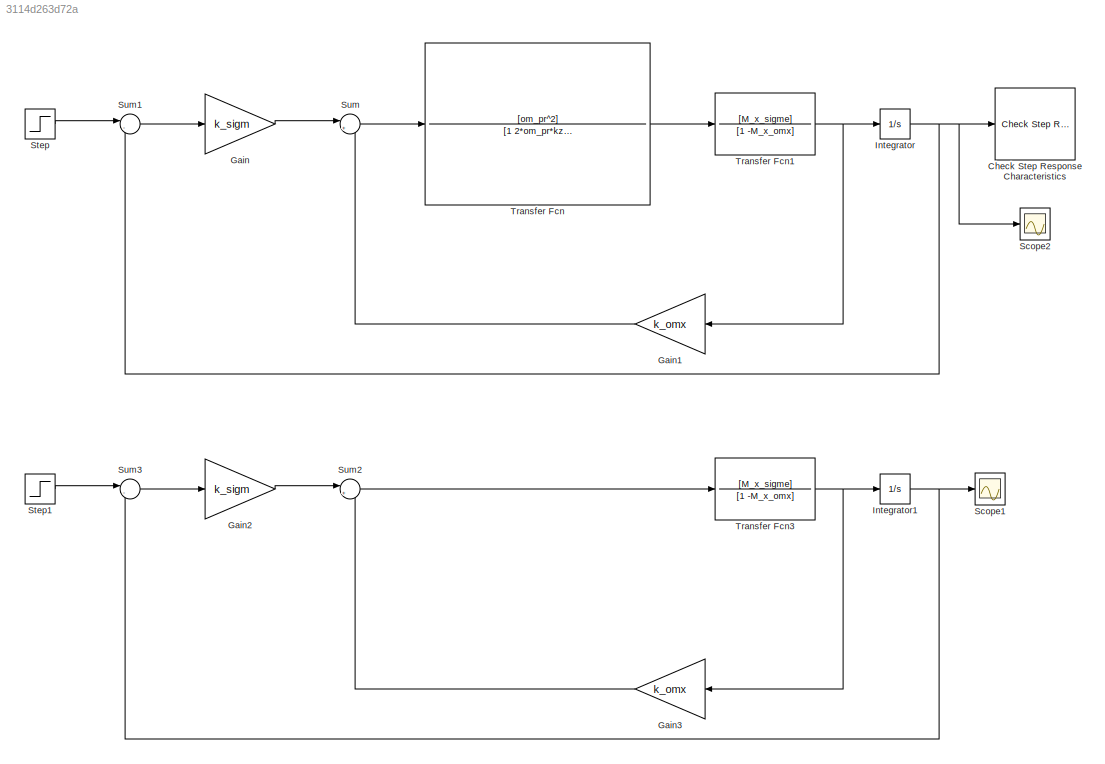
MODEL slx_3114d263d72a
KIND model
CONFIG AbsTol = auto
CONFIG EnableMultiTasking = off
CONFIG FixedStep = auto
CONFIG MaxStep = auto
CONFIG MinStep = auto
CONFIG RelTol = 1e-3
CONFIG SampleTimeConstraint = Unconstrained
CONFIG SolverName = VariableStepAuto
CONFIG StartTime = 0.0
CONFIG StopTime = 2
BLOCK [Reference] Check Step Response Characteristics  REF=checkpacklib/Check Step Response 
Characteristics
  InstantiateOnLoad = on
  LibrarySourceBlock = sdolib/Model Verification/Check Step Response \nCharacteristics
  SourceBlock = checkpacklib/Check Step Response \nCharacteristics
  SourceType = Checks_StepResponse
BLOCK [Gain] Gain
  Gain = k_sigm
BLOCK [Gain] Gain1
  Gain = k_omx
BLOCK [Gain] Gain2
  Gain = k_sigm
BLOCK [Gain] Gain3
  Gain = k_omx
BLOCK [Integrator] Integrator
BLOCK [Integrator] Integrator1
BLOCK [Scope] Scope1
  Floating = off
  NumInputPorts = 1
  ScopeSpecificationString = Simulink.scopes.TimeScopeBlockCfg('CurrentConfiguration', extmgr.ConfigurationSet(extmgr.Configuration('Core','General UI',true),extmgr.Configuration('Core','Source UI',true),extmgr.Configuration('Sources','WiredSimulink',true,'DataLoggingVariableName','ScopeData1'),extmgr.Configuration('Visuals','Time Domain',true,'SerializedDisplays',{struct('MinYLimReal','-0.12699','MaxYLimReal','1.14288','YLab...<+1370ch>
BLOCK [Scope] Scope2
  Floating = off
  NumInputPorts = 1
  ScopeSpecificationString = Simulink.scopes.TimeScopeBlockCfg('CurrentConfiguration', extmgr.ConfigurationSet(extmgr.Configuration('Core','General UI',true),extmgr.Configuration('Core','Source UI',true),extmgr.Configuration('Sources','WiredSimulink',true,'DataLoggingVariableName','ScopeData1'),extmgr.Configuration('Visuals','Time Domain',true,'SerializedDisplays',{struct('MinYLimReal','-0.12915','MaxYLimReal','1.16238','YLab...<+1369ch>
BLOCK [Step] Step
  SampleTime = 0
  Time = 0
BLOCK [Step] Step1
  SampleTime = 0
  Time = 0
BLOCK [Sum] Sum
  Inputs = |++
BLOCK [Sum] Sum1
  Inputs = |-+
BLOCK [Sum] Sum2
  Inputs = |++
BLOCK [Sum] Sum3
  Inputs = |-+
BLOCK [TransferFcn] Transfer Fcn
  Denominator = [1 2*om_pr*kzi_pr om_pr^2]
  Numerator = [om_pr^2]
BLOCK [TransferFcn] Transfer Fcn1
  Denominator = [1 -M_x_omx]
  Numerator = [M_x_sigme]
BLOCK [TransferFcn] Transfer Fcn3
  Denominator = [1 -M_x_omx]
  Numerator = [M_x_sigme]
LINE Gain1:1 -> Sum:2
LINE Gain2:1 -> Sum2:1
LINE Gain3:1 -> Sum2:2
LINE Gain:1 -> Sum:1
NET Integrator1:1 -> Scope1:1, Sum3:2
NET Integrator:1 -> Check Step Response Characteristics:1, Scope2:1, Sum1:2
LINE Step1:1 -> Sum3:1
LINE Step:1 -> Sum1:1
LINE Sum1:1 -> Gain:1
LINE Sum2:1 -> Transfer Fcn3:1
LINE Sum3:1 -> Gain2:1
LINE Sum:1 -> Transfer Fcn:1
NET Transfer Fcn1:1 -> Gain1:1, Integrator:1
NET Transfer Fcn3:1 -> Gain3:1, Integrator1:1
LINE Transfer Fcn:1 -> Transfer Fcn1:1
note: NET lines group one-source signal fan-out (src -> all destinations, sorted); 1:1 wires keep LINE
